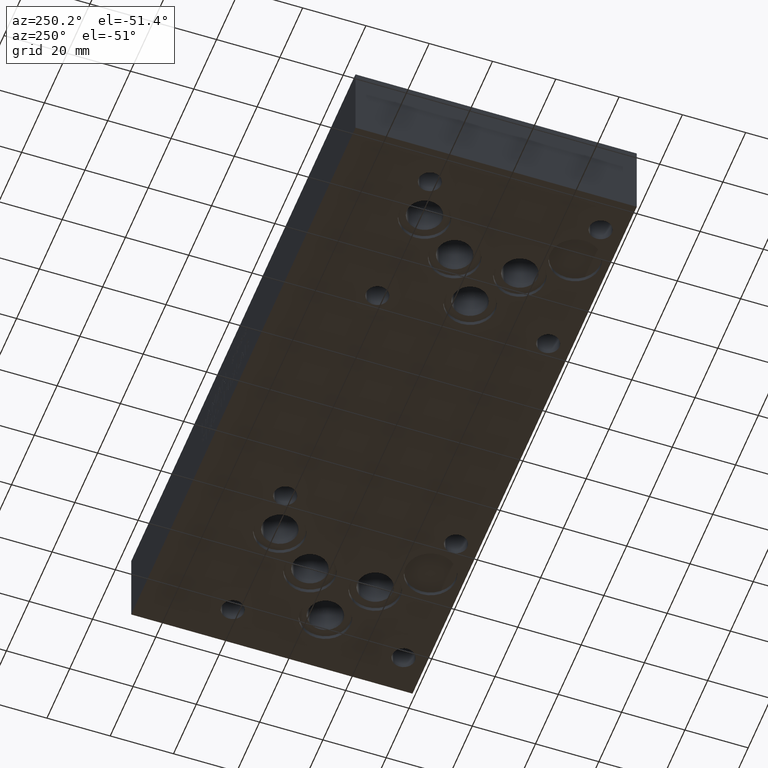
[diagram: clean part render]
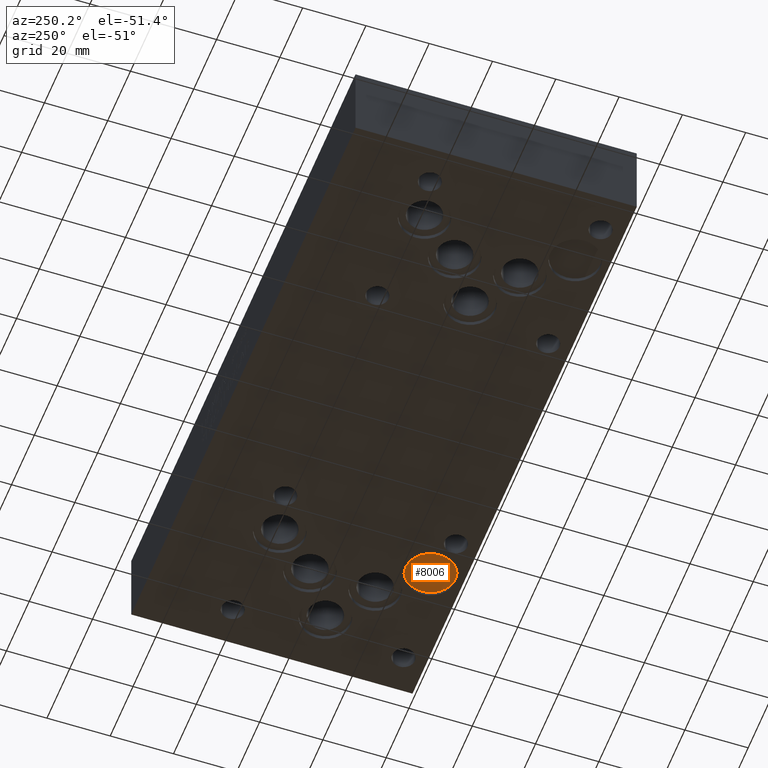
[diagram: same view with one face highlighted and labeled with its STEP entity id]
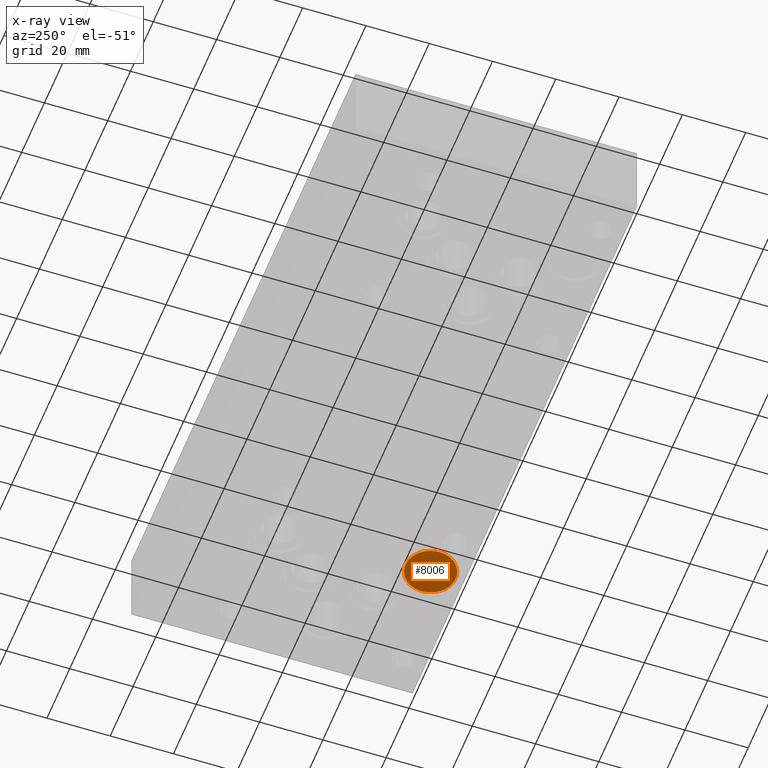
[diagram: x-ray of the same camera — body ghosted, the highlighted face saturated]
A machine part, auxiliary view. The second image highlights one B-rep face of the part: STEP entity #8006.
The next image is the same camera in x-ray: the body ghosted, the highlighted face saturated — about 0% of this face is hidden behind the body in this view.
In plain terms, the highlighted planar face has unit normal (0, 0, -1).
Its self-contained STEP definition (entity closure, byte-faithful):
#134=CIRCLE('',#8406,7.9375);
#135=CIRCLE('',#8407,7.9375);
#491=PLANE('',#8408);
#874=FACE_OUTER_BOUND('',#1311,.T.);
#1311=EDGE_LOOP('',(#7066,#7067));
#3856=VERTEX_POINT('',#13828);
#3857=VERTEX_POINT('',#13830);
#4951=EDGE_CURVE('',#3857,#3856,#134,.T.);
#4952=EDGE_CURVE('',#3856,#3857,#135,.T.);
#7066=ORIENTED_EDGE('',*,*,#4951,.T.);
#7067=ORIENTED_EDGE('',*,*,#4952,.T.);
#8006=ADVANCED_FACE('',(#874),#491,.T.);
#8406=AXIS2_PLACEMENT_3D('',#13831,#9940,#9941);
#8407=AXIS2_PLACEMENT_3D('',#13832,#9942,#9943);
#8408=AXIS2_PLACEMENT_3D('',#13833,#9944,#9945);
#9940=DIRECTION('center_axis',(0.,0.,-1.));
#9941=DIRECTION('ref_axis',(1.,0.,0.));
#9942=DIRECTION('center_axis',(0.,0.,-1.));
#9943=DIRECTION('ref_axis',(1.,0.,0.));
#9944=DIRECTION('center_axis',(0.,0.,-1.));
#9945=DIRECTION('ref_axis',(1.,0.,0.));
#13828=CARTESIAN_POINT('',(144.4371,10.3124,1.3208));
#13830=CARTESIAN_POINT('',(160.3121,10.3124,1.3208));
#13831=CARTESIAN_POINT('Origin',(152.3746,10.3124,1.3208));
#13832=CARTESIAN_POINT('Origin',(152.3746,10.3124,1.3208));
#13833=CARTESIAN_POINT('Origin',(152.3746,10.3124,1.3208));